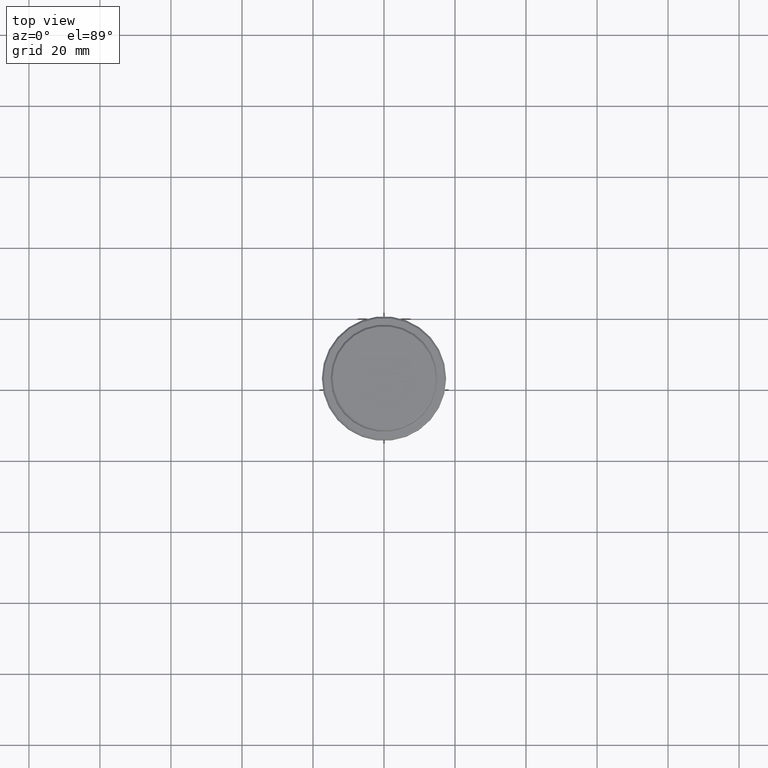
[diagram: clean part render]
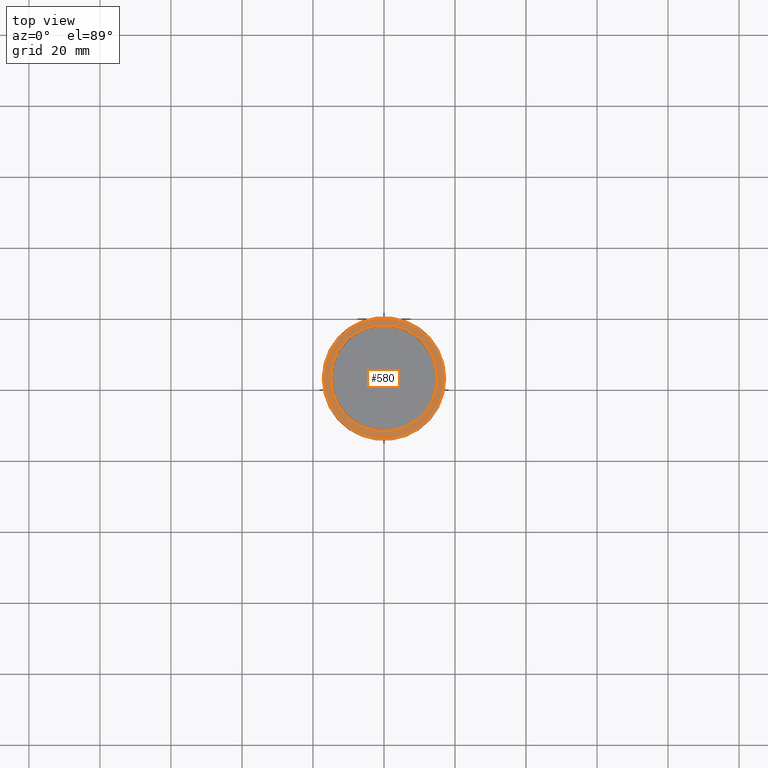
[diagram: same view with one face highlighted and labeled with its STEP entity id]
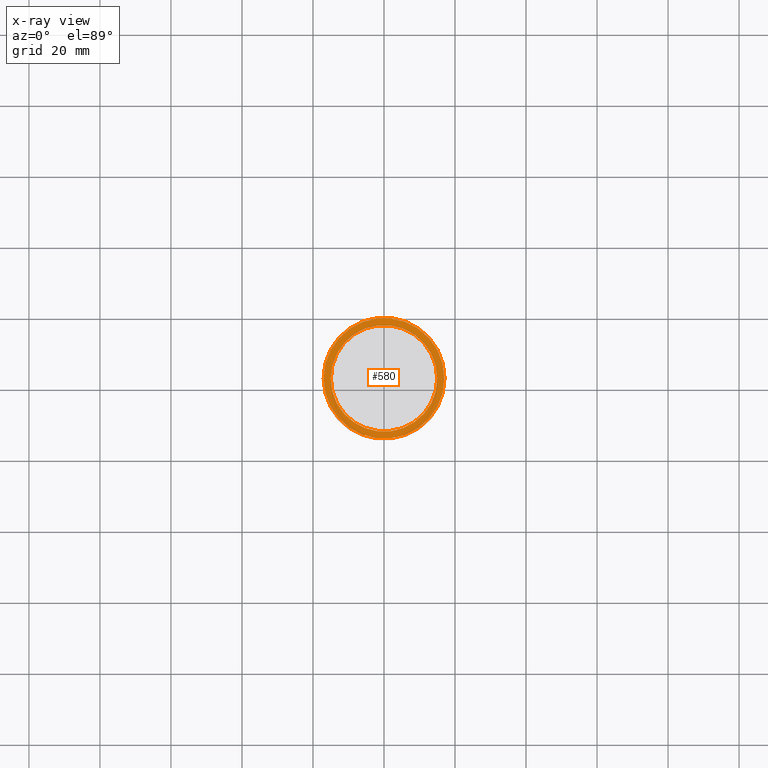
[diagram: x-ray of the same camera — body ghosted, the highlighted face saturated]
A machine part, top view. The second image highlights one B-rep face of the part: STEP entity #580.
The next image is the same camera in x-ray: the body ghosted, the highlighted face saturated — about 0% of this face is hidden behind the body in this view.
In plain terms, the highlighted planar face has unit normal (0, -0, 1).
Its self-contained STEP definition (entity closure, byte-faithful):
#19 = AXIS2_PLACEMENT_3D ( 'NONE', #898, #630, #682 ) ;
#26 = CARTESIAN_POINT ( 'NONE',  ( 16.99999999999998579, 2.112515728529183278E-15, -9.000000000000000000 ) ) ;
#46 = CIRCLE ( 'NONE', #690, 16.99999999999998579 ) ;
#68 = AXIS2_PLACEMENT_3D ( 'NONE', #539, #1077, #974 ) ;
#230 = EDGE_CURVE ( 'NONE', #1076, #450, #299, .T. ) ;
#299 = CIRCLE ( 'NONE', #19, 16.99999999999998579 ) ;
#300 = VERTEX_POINT ( 'NONE', #1059 ) ;
#314 = DIRECTION ( 'NONE',  ( 0.000000000000000000, 0.000000000000000000, -1.000000000000000000 ) ) ;
#318 = EDGE_LOOP ( 'NONE', ( #840, #861 ) ) ;
#395 = CARTESIAN_POINT ( 'NONE',  ( 0.000000000000000000, 14.49999999999999467, -9.000000000000000000 ) ) ;
#397 = CARTESIAN_POINT ( 'NONE',  ( -16.99999999999998579, 0.000000000000000000, -9.000000000000000000 ) ) ;
#414 = AXIS2_PLACEMENT_3D ( 'NONE', #989, #314, #425 ) ;
#425 = DIRECTION ( 'NONE',  ( 1.000000000000000000, 0.000000000000000000, 0.000000000000000000 ) ) ;
#444 = DIRECTION ( 'NONE',  ( -0.000000000000000000, -0.000000000000000000, 1.000000000000000000 ) ) ;
#450 = VERTEX_POINT ( 'NONE', #26 ) ;
#466 = ORIENTED_EDGE ( 'NONE', *, *, #1189, .T. ) ;
#528 = AXIS2_PLACEMENT_3D ( 'NONE', #395, #837, #959 ) ;
#539 = CARTESIAN_POINT ( 'NONE',  ( 0.000000000000000000, 0.000000000000000000, -9.000000000000000000 ) ) ;
#562 = DIRECTION ( 'NONE',  ( 1.000000000000000000, 0.000000000000000000, 0.000000000000000000 ) ) ;
#580 = ADVANCED_FACE ( 'NONE', ( #636, #1156 ), #1357, .T. ) ;
#630 = DIRECTION ( 'NONE',  ( -0.000000000000000000, -0.000000000000000000, 1.000000000000000000 ) ) ;
#636 = FACE_OUTER_BOUND ( 'NONE', #1269, .T. ) ;
#682 = DIRECTION ( 'NONE',  ( 1.000000000000000000, 0.000000000000000000, 0.000000000000000000 ) ) ;
#690 = AXIS2_PLACEMENT_3D ( 'NONE', #1082, #444, #562 ) ;
#771 = ORIENTED_EDGE ( 'NONE', *, *, #230, .T. ) ;
#813 = CIRCLE ( 'NONE', #414, 14.99999999999999289 ) ;
#837 = DIRECTION ( 'NONE',  ( 0.000000000000000000, -0.000000000000000000, 1.000000000000000000 ) ) ;
#840 = ORIENTED_EDGE ( 'NONE', *, *, #1213, .T. ) ;
#861 = ORIENTED_EDGE ( 'NONE', *, *, #1162, .T. ) ;
#898 = CARTESIAN_POINT ( 'NONE',  ( 0.000000000000000000, 0.000000000000000000, -9.000000000000000000 ) ) ;
#959 = DIRECTION ( 'NONE',  ( 1.000000000000000000, 0.000000000000000000, 0.000000000000000000 ) ) ;
#974 = DIRECTION ( 'NONE',  ( 1.000000000000000000, 0.000000000000000000, 0.000000000000000000 ) ) ;
#989 = CARTESIAN_POINT ( 'NONE',  ( 0.000000000000000000, 0.000000000000000000, -9.000000000000000000 ) ) ;
#1009 = CARTESIAN_POINT ( 'NONE',  ( 14.99999999999999289, 0.000000000000000000, -9.000000000000000000 ) ) ;
#1059 = CARTESIAN_POINT ( 'NONE',  ( -14.99999999999999289, 1.836970198721028800E-15, -9.000000000000000000 ) ) ;
#1076 = VERTEX_POINT ( 'NONE', #397 ) ;
#1077 = DIRECTION ( 'NONE',  ( 0.000000000000000000, 0.000000000000000000, -1.000000000000000000 ) ) ;
#1082 = CARTESIAN_POINT ( 'NONE',  ( 0.000000000000000000, 0.000000000000000000, -9.000000000000000000 ) ) ;
#1156 = FACE_BOUND ( 'NONE', #318, .T. ) ;
#1162 = EDGE_CURVE ( 'NONE', #300, #1337, #1341, .T. ) ;
#1189 = EDGE_CURVE ( 'NONE', #450, #1076, #46, .T. ) ;
#1213 = EDGE_CURVE ( 'NONE', #1337, #300, #813, .T. ) ;
#1269 = EDGE_LOOP ( 'NONE', ( #771, #466 ) ) ;
#1337 = VERTEX_POINT ( 'NONE', #1009 ) ;
#1341 = CIRCLE ( 'NONE', #68, 14.99999999999999289 ) ;
#1357 = PLANE ( 'NONE',  #528 ) ;